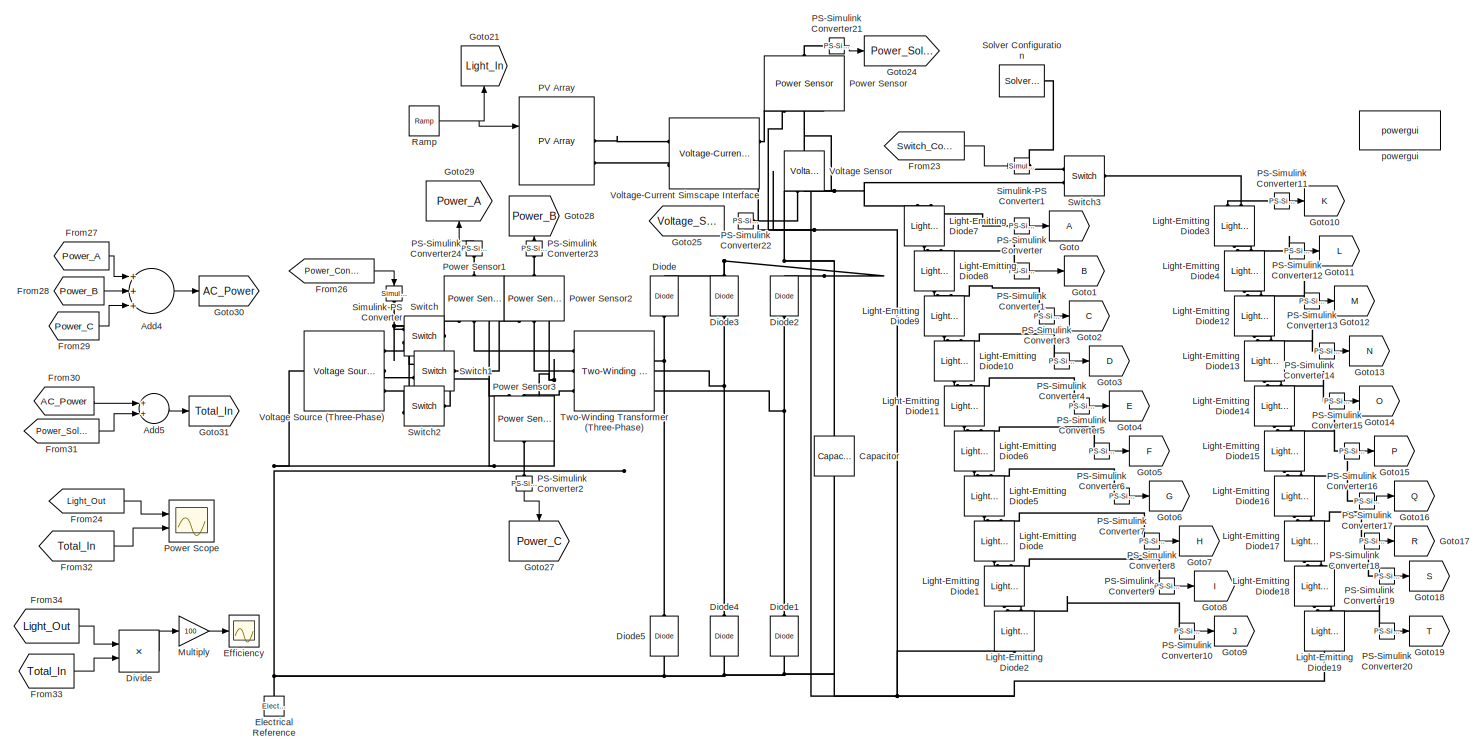
[diagram: root canvas - part 1/2, most of the canvas]
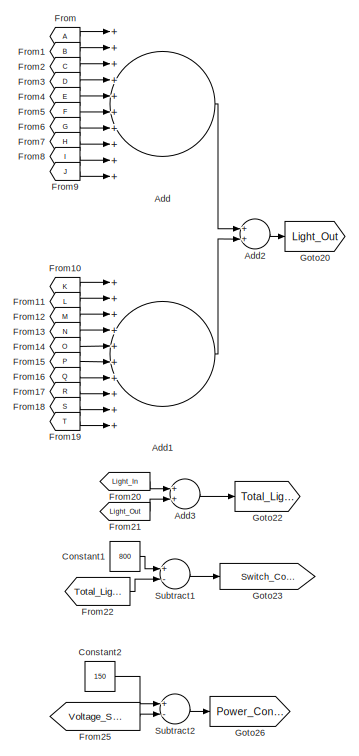
[diagram: root canvas - part 2/2, right side, full height]
MODEL slx_76b424feff78
KIND model
CONFIG AbsTol = auto
CONFIG EnableMultiTasking = off
CONFIG FixedStep = 0.0001
CONFIG MaxStep = auto
CONFIG MinStep = auto
CONFIG RelTol = 1e-3
CONFIG SampleTimeConstraint = Unconstrained
CONFIG Solver = VariableStepAuto
CONFIG SolverName = VariableStepAuto
CONFIG StartTime = 0.0
CONFIG StopTime = 20
BLOCK [Sum] Add
  InputSameDT = off
  Inputs = ++++++++++
  OutDataTypeStr = Inherit: Inherit via internal rule
  Ports = [10, 1]
  SaturateOnIntegerOverflow = off
BLOCK [Sum] Add1
  InputSameDT = off
  Inputs = ++++++++++
  OutDataTypeStr = Inherit: Inherit via internal rule
  Ports = [10, 1]
  SaturateOnIntegerOverflow = off
BLOCK [Sum] Add2
  InputSameDT = off
  OutDataTypeStr = Inherit: Inherit via internal rule
  Ports = [2, 1]
  SaturateOnIntegerOverflow = off
BLOCK [Sum] Add3
  InputSameDT = off
  OutDataTypeStr = Inherit: Inherit via internal rule
  Ports = [2, 1]
  SaturateOnIntegerOverflow = off
BLOCK [Sum] Add4
  InputSameDT = off
  Inputs = +++
  OutDataTypeStr = Inherit: Inherit via internal rule
  Ports = [3, 1]
  SaturateOnIntegerOverflow = off
BLOCK [Sum] Add5
  InputSameDT = off
  OutDataTypeStr = Inherit: Inherit via internal rule
  Ports = [2, 1]
  SaturateOnIntegerOverflow = off
BLOCK [Reference] Capacitor  REF=fl_lib/Electrical/Electrical Elements/Capacitor
  Ports = [0, 0, 0, 0, 0, 1, 1]
  SourceBlock = fl_lib/Electrical/Electrical Elements/Capacitor
  SourceProductBaseCode = SS
  SourceProductName = Simscape
  SourceType = Capacitor
BLOCK [Constant] Constant1
  Value = 800
BLOCK [Constant] Constant2
  Value = 150
BLOCK [Reference] Diode  REF=ee_lib/Semiconductors &
Converters/Diode
  Ports = [0, 0, 0, 0, 0, 1, 1]
  SourceBlock = ee_lib/Semiconductors &\nConverters/Diode
  SourceProductBaseCode = PS
  SourceProductName = Simscape Electrical
  SourceType = Diode
BLOCK [Reference] Diode1  REF=ee_lib/Semiconductors &
Converters/Diode
  Ports = [0, 0, 0, 0, 0, 1, 1]
  SourceBlock = ee_lib/Semiconductors &\nConverters/Diode
  SourceProductBaseCode = PS
  SourceProductName = Simscape Electrical
  SourceType = Diode
BLOCK [Reference] Diode2  REF=ee_lib/Semiconductors &
Converters/Diode
  Ports = [0, 0, 0, 0, 0, 1, 1]
  SourceBlock = ee_lib/Semiconductors &\nConverters/Diode
  SourceProductBaseCode = PS
  SourceProductName = Simscape Electrical
  SourceType = Diode
BLOCK [Reference] Diode3  REF=ee_lib/Semiconductors &
Converters/Diode
  Ports = [0, 0, 0, 0, 0, 1, 1]
  SourceBlock = ee_lib/Semiconductors &\nConverters/Diode
  SourceProductBaseCode = PS
  SourceProductName = Simscape Electrical
  SourceType = Diode
BLOCK [Reference] Diode4  REF=ee_lib/Semiconductors &
Converters/Diode
  Ports = [0, 0, 0, 0, 0, 1, 1]
  SourceBlock = ee_lib/Semiconductors &\nConverters/Diode
  SourceProductBaseCode = PS
  SourceProductName = Simscape Electrical
  SourceType = Diode
BLOCK [Reference] Diode5  REF=ee_lib/Semiconductors &
Converters/Diode
  Ports = [0, 0, 0, 0, 0, 1, 1]
  SourceBlock = ee_lib/Semiconductors &\nConverters/Diode
  SourceProductBaseCode = PS
  SourceProductName = Simscape Electrical
  SourceType = Diode
BLOCK [Product] Divide
  InputSameDT = off
  Inputs = */
  OutDataTypeStr = Inherit: Inherit via internal rule
  Ports = [2, 1]
  RndMeth = Floor
  SaturateOnIntegerOverflow = off
BLOCK [Scope] Efficiency
  Floating = off
  NumInputPorts = 1
  Ports = [1]
  ScopeSpecificationString = Simulink.scopes.TimeScopeBlockCfg('CurrentConfiguration', extmgr.ConfigurationSet(extmgr.Configuration('Core','General UI',true),extmgr.Configuration('Core','Source UI',true),extmgr.Configuration('Sources','WiredSimulink',true,'DataLoggingVariableName','ScopeData1'),extmgr.Configuration('Visuals','Time Domain',true,'SerializedDisplays',{struct('MinYLimReal','-0.00174','MaxYLimReal','0.01567','YLab...<+1367ch>
BLOCK [Reference] Electrical Reference  REF=fl_lib/Electrical/Electrical Elements/Electrical Reference
  Ports = [0, 0, 0, 0, 0, 1]
  SourceBlock = fl_lib/Electrical/Electrical Elements/Electrical Reference
  SourceProductBaseCode = SS
  SourceProductName = Simscape
  SourceType = Electrical Reference
BLOCK [From] From
BLOCK [From] From1
  GotoTag = B
BLOCK [From] From10
  GotoTag = K
BLOCK [From] From11
  GotoTag = L
BLOCK [From] From12
  GotoTag = M
BLOCK [From] From13
  GotoTag = N
BLOCK [From] From14
  GotoTag = O
BLOCK [From] From15
  GotoTag = P
BLOCK [From] From16
  GotoTag = Q
BLOCK [From] From17
  GotoTag = R
BLOCK [From] From18
  GotoTag = S
BLOCK [From] From19
  GotoTag = T
BLOCK [From] From2
  GotoTag = C
BLOCK [From] From20
  GotoTag = Light_In
BLOCK [From] From21
  GotoTag = Light_Out
BLOCK [From] From22
  GotoTag = Total_Light
BLOCK [From] From23
  GotoTag = Switch_Control
BLOCK [From] From24
  GotoTag = Light_Out
BLOCK [From] From25
  GotoTag = Voltage_Solar
BLOCK [From] From26
  GotoTag = Power_Control
BLOCK [From] From27
  GotoTag = Power_A
BLOCK [From] From28
  GotoTag = Power_B
BLOCK [From] From29
  GotoTag = Power_C
BLOCK [From] From3
  GotoTag = D
BLOCK [From] From30
  GotoTag = AC_Power
BLOCK [From] From31
  GotoTag = Power_Solar
BLOCK [From] From32
  GotoTag = Total_In
BLOCK [From] From33
  GotoTag = Total_In
BLOCK [From] From34
  GotoTag = Light_Out
BLOCK [From] From4
  GotoTag = E
BLOCK [From] From5
  GotoTag = F
BLOCK [From] From6
  GotoTag = G
BLOCK [From] From7
  GotoTag = H
BLOCK [From] From8
  GotoTag = I
BLOCK [From] From9
  GotoTag = J
BLOCK [Goto] Goto
BLOCK [Goto] Goto1
  GotoTag = B
BLOCK [Goto] Goto10
  GotoTag = K
BLOCK [Goto] Goto11
  GotoTag = L
BLOCK [Goto] Goto12
  GotoTag = M
BLOCK [Goto] Goto13
  GotoTag = N
BLOCK [Goto] Goto14
  GotoTag = O
BLOCK [Goto] Goto15
  GotoTag = P
BLOCK [Goto] Goto16
  GotoTag = Q
BLOCK [Goto] Goto17
  GotoTag = R
BLOCK [Goto] Goto18
  GotoTag = S
BLOCK [Goto] Goto19
  GotoTag = T
BLOCK [Goto] Goto2
  GotoTag = C
BLOCK [Goto] Goto20
  GotoTag = Light_Out
BLOCK [Goto] Goto21
  GotoTag = Light_In
BLOCK [Goto] Goto22
  GotoTag = Total_Light
BLOCK [Goto] Goto23
  GotoTag = Switch_Control
BLOCK [Goto] Goto24
  GotoTag = Power_Solar
BLOCK [Goto] Goto25
  GotoTag = Voltage_Solar
BLOCK [Goto] Goto26
  GotoTag = Power_Control
BLOCK [Goto] Goto27
  GotoTag = Power_C
BLOCK [Goto] Goto28
  GotoTag = Power_B
BLOCK [Goto] Goto29
  GotoTag = Power_A
BLOCK [Goto] Goto3
  GotoTag = D
BLOCK [Goto] Goto30
  GotoTag = AC_Power
BLOCK [Goto] Goto31
  GotoTag = Total_In
BLOCK [Goto] Goto4
  GotoTag = E
BLOCK [Goto] Goto5
  GotoTag = F
BLOCK [Goto] Goto6
  GotoTag = G
BLOCK [Goto] Goto7
  GotoTag = H
BLOCK [Goto] Goto8
  GotoTag = I
BLOCK [Goto] Goto9
  GotoTag = J
BLOCK [Reference] Light-Emitting Diode  REF=ee_lib/Sensors &
Transducers/Light-Emitting Diode
  Ports = [0, 0, 0, 0, 0, 2, 1]
  SourceBlock = ee_lib/Sensors &\nTransducers/Light-Emitting Diode
  SourceProductBaseCode = PS
  SourceProductName = Simscape Electrical
  SourceType = Light-Emitting Diode
BLOCK [Reference] Light-Emitting Diode1  REF=ee_lib/Sensors &
Transducers/Light-Emitting Diode
  Ports = [0, 0, 0, 0, 0, 2, 1]
  SourceBlock = ee_lib/Sensors &\nTransducers/Light-Emitting Diode
  SourceProductBaseCode = PS
  SourceProductName = Simscape Electrical
  SourceType = Light-Emitting Diode
BLOCK [Reference] Light-Emitting Diode10  REF=ee_lib/Sensors &
Transducers/Light-Emitting Diode
  Ports = [0, 0, 0, 0, 0, 2, 1]
  SourceBlock = ee_lib/Sensors &\nTransducers/Light-Emitting Diode
  SourceProductBaseCode = PS
  SourceProductName = Simscape Electrical
  SourceType = Light-Emitting Diode
BLOCK [Reference] Light-Emitting Diode11  REF=ee_lib/Sensors &
Transducers/Light-Emitting Diode
  Ports = [0, 0, 0, 0, 0, 2, 1]
  SourceBlock = ee_lib/Sensors &\nTransducers/Light-Emitting Diode
  SourceProductBaseCode = PS
  SourceProductName = Simscape Electrical
  SourceType = Light-Emitting Diode
BLOCK [Reference] Light-Emitting Diode12  REF=ee_lib/Sensors &
Transducers/Light-Emitting Diode
  Ports = [0, 0, 0, 0, 0, 2, 1]
  SourceBlock = ee_lib/Sensors &\nTransducers/Light-Emitting Diode
  SourceProductBaseCode = PS
  SourceProductName = Simscape Electrical
  SourceType = Light-Emitting Diode
BLOCK [Reference] Light-Emitting Diode13  REF=ee_lib/Sensors &
Transducers/Light-Emitting Diode
  Ports = [0, 0, 0, 0, 0, 2, 1]
  SourceBlock = ee_lib/Sensors &\nTransducers/Light-Emitting Diode
  SourceProductBaseCode = PS
  SourceProductName = Simscape Electrical
  SourceType = Light-Emitting Diode
BLOCK [Reference] Light-Emitting Diode14  REF=ee_lib/Sensors &
Transducers/Light-Emitting Diode
  Ports = [0, 0, 0, 0, 0, 2, 1]
  SourceBlock = ee_lib/Sensors &\nTransducers/Light-Emitting Diode
  SourceProductBaseCode = PS
  SourceProductName = Simscape Electrical
  SourceType = Light-Emitting Diode
BLOCK [Reference] Light-Emitting Diode15  REF=ee_lib/Sensors &
Transducers/Light-Emitting Diode
  Ports = [0, 0, 0, 0, 0, 2, 1]
  SourceBlock = ee_lib/Sensors &\nTransducers/Light-Emitting Diode
  SourceProductBaseCode = PS
  SourceProductName = Simscape Electrical
  SourceType = Light-Emitting Diode
BLOCK [Reference] Light-Emitting Diode16  REF=ee_lib/Sensors &
Transducers/Light-Emitting Diode
  Ports = [0, 0, 0, 0, 0, 2, 1]
  SourceBlock = ee_lib/Sensors &\nTransducers/Light-Emitting Diode
  SourceProductBaseCode = PS
  SourceProductName = Simscape Electrical
  SourceType = Light-Emitting Diode
BLOCK [Reference] Light-Emitting Diode17  REF=ee_lib/Sensors &
Transducers/Light-Emitting Diode
  Ports = [0, 0, 0, 0, 0, 2, 1]
  SourceBlock = ee_lib/Sensors &\nTransducers/Light-Emitting Diode
  SourceProductBaseCode = PS
  SourceProductName = Simscape Electrical
  SourceType = Light-Emitting Diode
BLOCK [Reference] Light-Emitting Diode18  REF=ee_lib/Sensors &
Transducers/Light-Emitting Diode
  Ports = [0, 0, 0, 0, 0, 2, 1]
  SourceBlock = ee_lib/Sensors &\nTransducers/Light-Emitting Diode
  SourceProductBaseCode = PS
  SourceProductName = Simscape Electrical
  SourceType = Light-Emitting Diode
BLOCK [Reference] Light-Emitting Diode19  REF=ee_lib/Sensors &
Transducers/Light-Emitting Diode
  Ports = [0, 0, 0, 0, 0, 2, 1]
  SourceBlock = ee_lib/Sensors &\nTransducers/Light-Emitting Diode
  SourceProductBaseCode = PS
  SourceProductName = Simscape Electrical
  SourceType = Light-Emitting Diode
BLOCK [Reference] Light-Emitting Diode2  REF=ee_lib/Sensors &
Transducers/Light-Emitting Diode
  Ports = [0, 0, 0, 0, 0, 2, 1]
  SourceBlock = ee_lib/Sensors &\nTransducers/Light-Emitting Diode
  SourceProductBaseCode = PS
  SourceProductName = Simscape Electrical
  SourceType = Light-Emitting Diode
BLOCK [Reference] Light-Emitting Diode3  REF=ee_lib/Sensors &
Transducers/Light-Emitting Diode
  Ports = [0, 0, 0, 0, 0, 2, 1]
  SourceBlock = ee_lib/Sensors &\nTransducers/Light-Emitting Diode
  SourceProductBaseCode = PS
  SourceProductName = Simscape Electrical
  SourceType = Light-Emitting Diode
BLOCK [Reference] Light-Emitting Diode4  REF=ee_lib/Sensors &
Transducers/Light-Emitting Diode
  Ports = [0, 0, 0, 0, 0, 2, 1]
  SourceBlock = ee_lib/Sensors &\nTransducers/Light-Emitting Diode
  SourceProductBaseCode = PS
  SourceProductName = Simscape Electrical
  SourceType = Light-Emitting Diode
BLOCK [Reference] Light-Emitting Diode5  REF=ee_lib/Sensors &
Transducers/Light-Emitting Diode
  Ports = [0, 0, 0, 0, 0, 2, 1]
  SourceBlock = ee_lib/Sensors &\nTransducers/Light-Emitting Diode
  SourceProductBaseCode = PS
  SourceProductName = Simscape Electrical
  SourceType = Light-Emitting Diode
BLOCK [Reference] Light-Emitting Diode6  REF=ee_lib/Sensors &
Transducers/Light-Emitting Diode
  Ports = [0, 0, 0, 0, 0, 2, 1]
  SourceBlock = ee_lib/Sensors &\nTransducers/Light-Emitting Diode
  SourceProductBaseCode = PS
  SourceProductName = Simscape Electrical
  SourceType = Light-Emitting Diode
BLOCK [Reference] Light-Emitting Diode7  REF=ee_lib/Sensors &
Transducers/Light-Emitting Diode
  Ports = [0, 0, 0, 0, 0, 2, 1]
  SourceBlock = ee_lib/Sensors &\nTransducers/Light-Emitting Diode
  SourceProductBaseCode = PS
  SourceProductName = Simscape Electrical
  SourceType = Light-Emitting Diode
BLOCK [Reference] Light-Emitting Diode8  REF=ee_lib/Sensors &
Transducers/Light-Emitting Diode
  Ports = [0, 0, 0, 0, 0, 2, 1]
  SourceBlock = ee_lib/Sensors &\nTransducers/Light-Emitting Diode
  SourceProductBaseCode = PS
  SourceProductName = Simscape Electrical
  SourceType = Light-Emitting Diode
BLOCK [Reference] Light-Emitting Diode9  REF=ee_lib/Sensors &
Transducers/Light-Emitting Diode
  Ports = [0, 0, 0, 0, 0, 2, 1]
  SourceBlock = ee_lib/Sensors &\nTransducers/Light-Emitting Diode
  SourceProductBaseCode = PS
  SourceProductName = Simscape Electrical
  SourceType = Light-Emitting Diode
BLOCK [Gain] Multiply
  Gain = 100
  OutDataTypeStr = Inherit: Inherit via internal rule
  ParamDataTypeStr = Inherit: Inherit via internal rule
  SaturateOnIntegerOverflow = off
BLOCK [Reference] PS-Simulink Converter  REF=nesl_utility/PS-Simulink
Converter
  Ports = [0, 1, 0, 0, 0, 1]
  SourceBlock = nesl_utility/PS-Simulink\nConverter
  SourceProductBaseCode = SS
  SourceProductName = Simscape
  SourceType = PS-Simulink\nConverter
BLOCK [Reference] PS-Simulink Converter1  REF=nesl_utility/PS-Simulink
Converter
  Ports = [0, 1, 0, 0, 0, 1]
  SourceBlock = nesl_utility/PS-Simulink\nConverter
  SourceProductBaseCode = SS
  SourceProductName = Simscape
  SourceType = PS-Simulink\nConverter
BLOCK [Reference] PS-Simulink Converter10  REF=nesl_utility/PS-Simulink
Converter
  Ports = [0, 1, 0, 0, 0, 1]
  SourceBlock = nesl_utility/PS-Simulink\nConverter
  SourceProductBaseCode = SS
  SourceProductName = Simscape
  SourceType = PS-Simulink\nConverter
BLOCK [Reference] PS-Simulink Converter11  REF=nesl_utility/PS-Simulink
Converter
  Ports = [0, 1, 0, 0, 0, 1]
  SourceBlock = nesl_utility/PS-Simulink\nConverter
  SourceProductBaseCode = SS
  SourceProductName = Simscape
  SourceType = PS-Simulink\nConverter
BLOCK [Reference] PS-Simulink Converter12  REF=nesl_utility/PS-Simulink
Converter
  Ports = [0, 1, 0, 0, 0, 1]
  SourceBlock = nesl_utility/PS-Simulink\nConverter
  SourceProductBaseCode = SS
  SourceProductName = Simscape
  SourceType = PS-Simulink\nConverter
BLOCK [Reference] PS-Simulink Converter13  REF=nesl_utility/PS-Simulink
Converter
  Ports = [0, 1, 0, 0, 0, 1]
  SourceBlock = nesl_utility/PS-Simulink\nConverter
  SourceProductBaseCode = SS
  SourceProductName = Simscape
  SourceType = PS-Simulink\nConverter
BLOCK [Reference] PS-Simulink Converter14  REF=nesl_utility/PS-Simulink
Converter
  Ports = [0, 1, 0, 0, 0, 1]
  SourceBlock = nesl_utility/PS-Simulink\nConverter
  SourceProductBaseCode = SS
  SourceProductName = Simscape
  SourceType = PS-Simulink\nConverter
BLOCK [Reference] PS-Simulink Converter15  REF=nesl_utility/PS-Simulink
Converter
  Ports = [0, 1, 0, 0, 0, 1]
  SourceBlock = nesl_utility/PS-Simulink\nConverter
  SourceProductBaseCode = SS
  SourceProductName = Simscape
  SourceType = PS-Simulink\nConverter
BLOCK [Reference] PS-Simulink Converter16  REF=nesl_utility/PS-Simulink
Converter
  Ports = [0, 1, 0, 0, 0, 1]
  SourceBlock = nesl_utility/PS-Simulink\nConverter
  SourceProductBaseCode = SS
  SourceProductName = Simscape
  SourceType = PS-Simulink\nConverter
BLOCK [Reference] PS-Simulink Converter17  REF=nesl_utility/PS-Simulink
Converter
  Ports = [0, 1, 0, 0, 0, 1]
  SourceBlock = nesl_utility/PS-Simulink\nConverter
  SourceProductBaseCode = SS
  SourceProductName = Simscape
  SourceType = PS-Simulink\nConverter
BLOCK [Reference] PS-Simulink Converter18  REF=nesl_utility/PS-Simulink
Converter
  Ports = [0, 1, 0, 0, 0, 1]
  SourceBlock = nesl_utility/PS-Simulink\nConverter
  SourceProductBaseCode = SS
  SourceProductName = Simscape
  SourceType = PS-Simulink\nConverter
BLOCK [Reference] PS-Simulink Converter19  REF=nesl_utility/PS-Simulink
Converter
  Ports = [0, 1, 0, 0, 0, 1]
  SourceBlock = nesl_utility/PS-Simulink\nConverter
  SourceProductBaseCode = SS
  SourceProductName = Simscape
  SourceType = PS-Simulink\nConverter
BLOCK [Reference] PS-Simulink Converter2  REF=nesl_utility/PS-Simulink
Converter
  Ports = [0, 1, 0, 0, 0, 1]
  SourceBlock = nesl_utility/PS-Simulink\nConverter
  SourceProductBaseCode = SS
  SourceProductName = Simscape
  SourceType = PS-Simulink\nConverter
BLOCK [Reference] PS-Simulink Converter20  REF=nesl_utility/PS-Simulink
Converter
  Ports = [0, 1, 0, 0, 0, 1]
  SourceBlock = nesl_utility/PS-Simulink\nConverter
  SourceProductBaseCode = SS
  SourceProductName = Simscape
  SourceType = PS-Simulink\nConverter
BLOCK [Reference] PS-Simulink Converter21  REF=nesl_utility/PS-Simulink
Converter
  Ports = [0, 1, 0, 0, 0, 1]
  SourceBlock = nesl_utility/PS-Simulink\nConverter
  SourceProductBaseCode = SS
  SourceProductName = Simscape
  SourceType = PS-Simulink\nConverter
BLOCK [Reference] PS-Simulink Converter22  REF=nesl_utility/PS-Simulink
Converter
  Ports = [0, 1, 0, 0, 0, 1]
  SourceBlock = nesl_utility/PS-Simulink\nConverter
  SourceProductBaseCode = SS
  SourceProductName = Simscape
  SourceType = PS-Simulink\nConverter
BLOCK [Reference] PS-Simulink Converter23  REF=nesl_utility/PS-Simulink
Converter
  Ports = [0, 1, 0, 0, 0, 1]
  SourceBlock = nesl_utility/PS-Simulink\nConverter
  SourceProductBaseCode = SS
  SourceProductName = Simscape
  SourceType = PS-Simulink\nConverter
BLOCK [Reference] PS-Simulink Converter24  REF=nesl_utility/PS-Simulink
Converter
  Ports = [0, 1, 0, 0, 0, 1]
  SourceBlock = nesl_utility/PS-Simulink\nConverter
  SourceProductBaseCode = SS
  SourceProductName = Simscape
  SourceType = PS-Simulink\nConverter
BLOCK [Reference] PS-Simulink Converter3  REF=nesl_utility/PS-Simulink
Converter
  Ports = [0, 1, 0, 0, 0, 1]
  SourceBlock = nesl_utility/PS-Simulink\nConverter
  SourceProductBaseCode = SS
  SourceProductName = Simscape
  SourceType = PS-Simulink\nConverter
BLOCK [Reference] PS-Simulink Converter4  REF=nesl_utility/PS-Simulink
Converter
  Ports = [0, 1, 0, 0, 0, 1]
  SourceBlock = nesl_utility/PS-Simulink\nConverter
  SourceProductBaseCode = SS
  SourceProductName = Simscape
  SourceType = PS-Simulink\nConverter
BLOCK [Reference] PS-Simulink Converter5  REF=nesl_utility/PS-Simulink
Converter
  Ports = [0, 1, 0, 0, 0, 1]
  SourceBlock = nesl_utility/PS-Simulink\nConverter
  SourceProductBaseCode = SS
  SourceProductName = Simscape
  SourceType = PS-Simulink\nConverter
BLOCK [Reference] PS-Simulink Converter6  REF=nesl_utility/PS-Simulink
Converter
  Ports = [0, 1, 0, 0, 0, 1]
  SourceBlock = nesl_utility/PS-Simulink\nConverter
  SourceProductBaseCode = SS
  SourceProductName = Simscape
  SourceType = PS-Simulink\nConverter
BLOCK [Reference] PS-Simulink Converter7  REF=nesl_utility/PS-Simulink
Converter
  Ports = [0, 1, 0, 0, 0, 1]
  SourceBlock = nesl_utility/PS-Simulink\nConverter
  SourceProductBaseCode = SS
  SourceProductName = Simscape
  SourceType = PS-Simulink\nConverter
BLOCK [Reference] PS-Simulink Converter8  REF=nesl_utility/PS-Simulink
Converter
  Ports = [0, 1, 0, 0, 0, 1]
  SourceBlock = nesl_utility/PS-Simulink\nConverter
  SourceProductBaseCode = SS
  SourceProductName = Simscape
  SourceType = PS-Simulink\nConverter
BLOCK [Reference] PS-Simulink Converter9  REF=nesl_utility/PS-Simulink
Converter
  Ports = [0, 1, 0, 0, 0, 1]
  SourceBlock = nesl_utility/PS-Simulink\nConverter
  SourceProductBaseCode = SS
  SourceProductName = Simscape
  SourceType = PS-Simulink\nConverter
BLOCK [Reference] PV Array  REF=re_lib/Solar/PV Array
  Ports = [2, 1, 0, 0, 0, 0, 2]
  SourceBlock = re_lib/Solar/PV Array
  SourceProductBaseCode = PS
  SourceProductName = Simscape Electrical
  SourceType = PV array
BLOCK [Scope] Power Scope
  Floating = off
  NumInputPorts = 2
  Ports = [2]
  ScopeSpecificationString = Simulink.scopes.TimeScopeBlockCfg('CurrentConfiguration', extmgr.ConfigurationSet(extmgr.Configuration('Core','General UI',true),extmgr.Configuration('Core','Source UI',true),extmgr.Configuration('Sources','WiredSimulink',true),extmgr.Configuration('Visuals','Time Domain',true,'SerializedDisplays',{struct('MinYLimReal','-5853.4957','MaxYLimReal','52681.4613','YLabelReal','','MinYLimMag','  0.00000...<+1467ch>
BLOCK [Reference] Power Sensor  REF=ee_lib/Sensors &
Transducers/Power Sensor
  Ports = [0, 0, 0, 0, 0, 3, 1]
  SourceBlock = ee_lib/Sensors &\nTransducers/Power Sensor
  SourceProductBaseCode = PS
  SourceProductName = Simscape Electrical
  SourceType = Power Sensor
BLOCK [Reference] Power Sensor1  REF=ee_lib/Sensors &
Transducers/Power Sensor
  Ports = [0, 0, 0, 0, 0, 3, 1]
  SourceBlock = ee_lib/Sensors &\nTransducers/Power Sensor
  SourceProductBaseCode = PS
  SourceProductName = Simscape Electrical
  SourceType = Power Sensor
BLOCK [Reference] Power Sensor2  REF=ee_lib/Sensors &
Transducers/Power Sensor
  Ports = [0, 0, 0, 0, 0, 3, 1]
  SourceBlock = ee_lib/Sensors &\nTransducers/Power Sensor
  SourceProductBaseCode = PS
  SourceProductName = Simscape Electrical
  SourceType = Power Sensor
BLOCK [Reference] Power Sensor3  REF=ee_lib/Sensors &
Transducers/Power Sensor
  Ports = [0, 0, 0, 0, 0, 3, 1]
  SourceBlock = ee_lib/Sensors &\nTransducers/Power Sensor
  SourceProductBaseCode = PS
  SourceProductName = Simscape Electrical
  SourceType = Power Sensor
BLOCK [Reference] Ramp  REF=simulink/Sources/Ramp
  Ports = [0, 1]
  SourceBlock = simulink/Sources/Ramp
  SourceProductBaseCode = SL
  SourceProductName = Simulink
  SourceType = Ramp
BLOCK [Reference] Simulink-PS Converter  REF=nesl_utility/Simulink-PS
Converter
  Ports = [1, 0, 0, 0, 0, 0, 1]
  SourceBlock = nesl_utility/Simulink-PS\nConverter
  SourceProductBaseCode = SS
  SourceProductName = Simscape
  SourceType = Simulink-PS\nConverter
BLOCK [Reference] Simulink-PS Converter1  REF=nesl_utility/Simulink-PS
Converter
  Ports = [1, 0, 0, 0, 0, 0, 1]
  SourceBlock = nesl_utility/Simulink-PS\nConverter
  SourceProductBaseCode = SS
  SourceProductName = Simscape
  SourceType = Simulink-PS\nConverter
BLOCK [Reference] Solver Configuration  REF=nesl_utility/Solver
Configuration
  Ports = [0, 0, 0, 0, 0, 0, 1]
  SourceBlock = nesl_utility/Solver\nConfiguration
  SourceProductBaseCode = SS
  SourceProductName = Simscape
  SourceType = Solver\nConfiguration
BLOCK [Sum] Subtract1
  InputSameDT = off
  Inputs = +-
  OutDataTypeStr = Inherit: Inherit via internal rule
  Ports = [2, 1]
  SaturateOnIntegerOverflow = off
BLOCK [Sum] Subtract2
  InputSameDT = off
  Inputs = +-
  OutDataTypeStr = Inherit: Inherit via internal rule
  Ports = [2, 1]
  SaturateOnIntegerOverflow = off
BLOCK [Reference] Switch  REF=fl_lib/Electrical/Electrical Elements/Switch
  Ports = [0, 0, 0, 0, 0, 1, 2]
  SourceBlock = fl_lib/Electrical/Electrical Elements/Switch
  SourceProductBaseCode = SS
  SourceProductName = Simscape
  SourceType = Switch
BLOCK [Reference] Switch1  REF=fl_lib/Electrical/Electrical Elements/Switch
  Ports = [0, 0, 0, 0, 0, 1, 2]
  SourceBlock = fl_lib/Electrical/Electrical Elements/Switch
  SourceProductBaseCode = SS
  SourceProductName = Simscape
  SourceType = Switch
BLOCK [Reference] Switch2  REF=fl_lib/Electrical/Electrical Elements/Switch
  Ports = [0, 0, 0, 0, 0, 1, 2]
  SourceBlock = fl_lib/Electrical/Electrical Elements/Switch
  SourceProductBaseCode = SS
  SourceProductName = Simscape
  SourceType = Switch
BLOCK [Reference] Switch3  REF=fl_lib/Electrical/Electrical Elements/Switch
  Ports = [0, 0, 0, 0, 0, 1, 2]
  SourceBlock = fl_lib/Electrical/Electrical Elements/Switch
  SourceProductBaseCode = SS
  SourceProductName = Simscape
  SourceType = Switch
BLOCK [Reference] Two-Winding Transformer (Three-Phase)  REF=ee_lib/Passive/Transformers/Two-Winding
Transformer
(Three-Phase)
  Ports = [0, 0, 0, 0, 0, 3, 3]
  SourceBlock = ee_lib/Passive/Transformers/Two-Winding\nTransformer\n(Three-Phase)
  SourceProductBaseCode = PS
  SourceProductName = Simscape Electrical
  SourceType = Two-Winding\nTransformer\n(Three-Phase)
BLOCK [Reference] Voltage Sensor  REF=fl_lib/Electrical/Electrical Sensors/Voltage Sensor
  Ports = [0, 0, 0, 0, 0, 1, 2]
  SourceBlock = fl_lib/Electrical/Electrical Sensors/Voltage Sensor
  SourceProductBaseCode = SS
  SourceProductName = Simscape
  SourceType = Voltage Sensor
BLOCK [Reference] Voltage Source (Three-Phase)  REF=ee_lib/Sources/Voltage
Source
(Three-Phase)
  Ports = [0, 0, 0, 0, 0, 1, 3]
  SourceBlock = ee_lib/Sources/Voltage\nSource\n(Three-Phase)
  SourceProductBaseCode = PS
  SourceProductName = Simscape Electrical
  SourceType = Voltage\nSource\n(Three-Phase)
BLOCK [Reference] Voltage-Current Simscape Interface  REF=powerlib/Interface
Elements/Voltage-Current
Simscape Interface
  Ports = [0, 0, 0, 0, 0, 2, 2]
  SourceBlock = powerlib/Interface\nElements/Voltage-Current\nSimscape Interface
  SourceProductBaseCode = PS
  SourceProductName = Simscape Electrical
  SourceType = Specialized Power Systems - Simscape Interface Element
BLOCK [Reference] powergui  REF=powerlib/powergui
  Ports = []
  Priority = 1
  SourceBlock = powerlib/powergui
  SourceProductBaseCode = PS
  SourceProductName = Simscape Electrical
  SourceType = PSB option menu block
LINE Add1:1 -> Add2:2
LINE Add2:1 -> Goto20:1
LINE Add3:1 -> Goto22:1
LINE Add4:1 -> Goto30:1
LINE Add5:1 -> Goto31:1
LINE Add:1 -> Add2:1
LINE Constant1:1 -> Subtract1:1
LINE Constant2:1 -> Subtract2:1
LINE Divide:1 -> Multiply:1
LINE From10:1 -> Add1:1
LINE From11:1 -> Add1:2
LINE From12:1 -> Add1:3
LINE From13:1 -> Add1:4
LINE From14:1 -> Add1:5
LINE From15:1 -> Add1:6
LINE From16:1 -> Add1:7
LINE From17:1 -> Add1:8
LINE From18:1 -> Add1:9
LINE From19:1 -> Add1:10
LINE From1:1 -> Add:2
LINE From20:1 -> Add3:1
LINE From21:1 -> Add3:2
LINE From22:1 -> Subtract1:2
LINE From23:1 -> Simulink-PS Converter1:1
LINE From24:1 -> Power Scope:1
LINE From25:1 -> Subtract2:2
LINE From26:1 -> Simulink-PS Converter:1
LINE From27:1 -> Add4:1
LINE From28:1 -> Add4:2
LINE From29:1 -> Add4:3
LINE From2:1 -> Add:3
LINE From30:1 -> Add5:1
LINE From31:1 -> Add5:2
LINE From32:1 -> Power Scope:2
LINE From33:1 -> Divide:2
LINE From34:1 -> Divide:1
LINE From3:1 -> Add:4
LINE From4:1 -> Add:5
LINE From5:1 -> Add:6
LINE From6:1 -> Add:7
LINE From7:1 -> Add:8
LINE From8:1 -> Add:9
LINE From9:1 -> Add:10
LINE From:1 -> Add:1
LINE Multiply:1 -> Efficiency:1
LINE PS-Simulink Converter10:1 -> Goto9:1
LINE PS-Simulink Converter11:1 -> Goto10:1
LINE PS-Simulink Converter12:1 -> Goto11:1
LINE PS-Simulink Converter13:1 -> Goto12:1
LINE PS-Simulink Converter14:1 -> Goto13:1
LINE PS-Simulink Converter15:1 -> Goto14:1
LINE PS-Simulink Converter16:1 -> Goto15:1
LINE PS-Simulink Converter17:1 -> Goto16:1
LINE PS-Simulink Converter18:1 -> Goto17:1
LINE PS-Simulink Converter19:1 -> Goto18:1
LINE PS-Simulink Converter1:1 -> Goto1:1
LINE PS-Simulink Converter20:1 -> Goto19:1
LINE PS-Simulink Converter21:1 -> Goto24:1
LINE PS-Simulink Converter23:1 -> Goto28:1
LINE PS-Simulink Converter24:1 -> Goto29:1
LINE PS-Simulink Converter2:1 -> Goto27:1
LINE PS-Simulink Converter3:1 -> Goto2:1
LINE PS-Simulink Converter4:1 -> Goto3:1
LINE PS-Simulink Converter5:1 -> Goto4:1
LINE PS-Simulink Converter6:1 -> Goto5:1
LINE PS-Simulink Converter7:1 -> Goto6:1
LINE PS-Simulink Converter8:1 -> Goto7:1
LINE PS-Simulink Converter9:1 -> Goto8:1
LINE PS-Simulink Converter:1 -> Goto:1
NET Ramp:1 -> Goto21:1, PV Array:1
LINE Subtract1:1 -> Goto23:1
LINE Subtract2:1 -> Goto26:1
PNET net1: Capacitor:LConn1 -- Diode2:RConn1 -- Diode3:RConn1 -- Diode:RConn1 -- Light-Emitting Diode7:LConn2 -- Power Sensor:LConn2 -- Switch3:RConn2 -- Voltage Sensor:LConn1
PNET net2: Capacitor:RConn1 -- Diode1:LConn1 -- Diode4:LConn1 -- Diode5:LConn1 -- Electrical Reference:LConn1 -- Light-Emitting Diode19:RConn1 -- Light-Emitting Diode2:RConn1 -- Power Sensor1:LConn3 -- Power Sensor2:LConn3 -- Power Sensor3:LConn2 -- Power Sensor3:LConn3 -- Power Sensor:LConn3 -- Two-Winding Transformer (Three-Phase):LConn3 -- Voltage Sensor:RConn2 -- Voltage Source (Three-Phase):LConn1 -- Voltage-Current Simscape Interface:RConn2
PNET net3: Diode1:RConn1 -- Diode2:LConn1 -- Two-Winding Transformer (Three-Phase):RConn3
PNET net4: Diode3:LConn1 -- Diode4:RConn1 -- Two-Winding Transformer (Three-Phase):RConn2
PNET net5: Diode5:RConn1 -- Diode:LConn1 -- Two-Winding Transformer (Three-Phase):RConn1
PLINE Light-Emitting Diode10:LConn1 -- PS-Simulink Converter4:LConn1
PLINE Light-Emitting Diode10:LConn2 -- Light-Emitting Diode9:RConn1
PLINE Light-Emitting Diode10:RConn1 -- Light-Emitting Diode11:LConn2
PLINE Light-Emitting Diode11:LConn1 -- PS-Simulink Converter5:LConn1
PLINE Light-Emitting Diode11:RConn1 -- Light-Emitting Diode6:LConn2
PLINE Light-Emitting Diode12:LConn1 -- PS-Simulink Converter13:LConn1
PLINE Light-Emitting Diode12:LConn2 -- Light-Emitting Diode4:RConn1
PLINE Light-Emitting Diode12:RConn1 -- Light-Emitting Diode13:LConn2
PLINE Light-Emitting Diode13:LConn1 -- PS-Simulink Converter14:LConn1
PLINE Light-Emitting Diode13:RConn1 -- Light-Emitting Diode14:LConn2
PLINE Light-Emitting Diode14:LConn1 -- PS-Simulink Converter15:LConn1
PLINE Light-Emitting Diode14:RConn1 -- Light-Emitting Diode15:LConn2
PLINE Light-Emitting Diode15:LConn1 -- PS-Simulink Converter16:LConn1
PLINE Light-Emitting Diode15:RConn1 -- Light-Emitting Diode16:LConn2
PLINE Light-Emitting Diode16:LConn1 -- PS-Simulink Converter17:LConn1
PLINE Light-Emitting Diode16:RConn1 -- Light-Emitting Diode17:LConn2
PLINE Light-Emitting Diode17:LConn1 -- PS-Simulink Converter18:LConn1
PLINE Light-Emitting Diode17:RConn1 -- Light-Emitting Diode18:LConn2
PLINE Light-Emitting Diode18:LConn1 -- PS-Simulink Converter19:LConn1
PLINE Light-Emitting Diode18:RConn1 -- Light-Emitting Diode19:LConn2
PLINE Light-Emitting Diode19:LConn1 -- PS-Simulink Converter20:LConn1
PLINE Light-Emitting Diode1:LConn1 -- PS-Simulink Converter9:LConn1
PLINE Light-Emitting Diode1:LConn2 -- Light-Emitting Diode:RConn1
PLINE Light-Emitting Diode1:RConn1 -- Light-Emitting Diode2:LConn2
PLINE Light-Emitting Diode2:LConn1 -- PS-Simulink Converter10:LConn1
PLINE Light-Emitting Diode3:LConn1 -- PS-Simulink Converter11:LConn1
PLINE Light-Emitting Diode3:LConn2 -- Switch3:LConn1
PLINE Light-Emitting Diode3:RConn1 -- Light-Emitting Diode4:LConn2
PLINE Light-Emitting Diode4:LConn1 -- PS-Simulink Converter12:LConn1
PLINE Light-Emitting Diode5:LConn1 -- PS-Simulink Converter7:LConn1
PLINE Light-Emitting Diode5:LConn2 -- Light-Emitting Diode6:RConn1
PLINE Light-Emitting Diode5:RConn1 -- Light-Emitting Diode:LConn2
PLINE Light-Emitting Diode6:LConn1 -- PS-Simulink Converter6:LConn1
PLINE Light-Emitting Diode7:LConn1 -- PS-Simulink Converter:LConn1
PLINE Light-Emitting Diode7:RConn1 -- Light-Emitting Diode8:LConn2
PLINE Light-Emitting Diode8:LConn1 -- PS-Simulink Converter1:LConn1
PLINE Light-Emitting Diode8:RConn1 -- Light-Emitting Diode9:LConn2
PLINE Light-Emitting Diode9:LConn1 -- PS-Simulink Converter3:LConn1
PLINE Light-Emitting Diode:LConn1 -- PS-Simulink Converter8:LConn1
PLINE PS-Simulink Converter21:LConn1 -- Power Sensor:RConn1
PLINE PS-Simulink Converter22:LConn1 -- Voltage Sensor:RConn1
PLINE PS-Simulink Converter23:LConn1 -- Power Sensor2:RConn1
PLINE PS-Simulink Converter24:LConn1 -- Power Sensor1:RConn1
PLINE PS-Simulink Converter2:LConn1 -- Power Sensor3:RConn1
PLINE PV Array:RConn1 -- Voltage-Current Simscape Interface:LConn1
PLINE PV Array:RConn2 -- Voltage-Current Simscape Interface:LConn2
PLINE Power Sensor1:LConn1 -- Switch:LConn1
PLINE Power Sensor1:LConn2 -- Two-Winding Transformer (Three-Phase):LConn1
PLINE Power Sensor2:LConn1 -- Switch1:LConn1
PLINE Power Sensor2:LConn2 -- Two-Winding Transformer (Three-Phase):LConn2
PLINE Power Sensor3:LConn1 -- Switch2:LConn1
PLINE Power Sensor:LConn1 -- Voltage-Current Simscape Interface:RConn1
PNET net6: Simulink-PS Converter1:RConn1 -- Solver Configuration:RConn1 -- Switch3:RConn1
PNET net7: Simulink-PS Converter:RConn1 -- Switch1:RConn1 -- Switch2:RConn1 -- Switch:RConn1
PLINE Switch1:RConn2 -- Voltage Source (Three-Phase):RConn2
PLINE Switch2:RConn2 -- Voltage Source (Three-Phase):RConn3
PLINE Switch:RConn2 -- Voltage Source (Three-Phase):RConn1
note: NET lines group one-source signal fan-out (src -> all destinations, sorted); 1:1 wires keep LINE; PNET lines group multi-terminal physical nets as a canonical sorted terminal list (undirected conserving connections); 2-terminal nets keep the pairwise PLINE form
